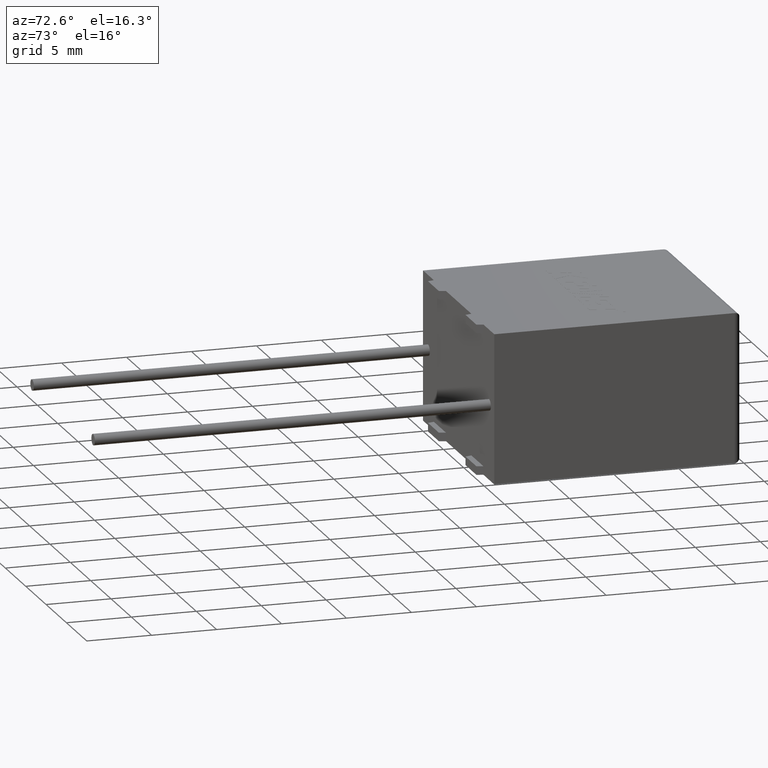
[diagram: clean part render]
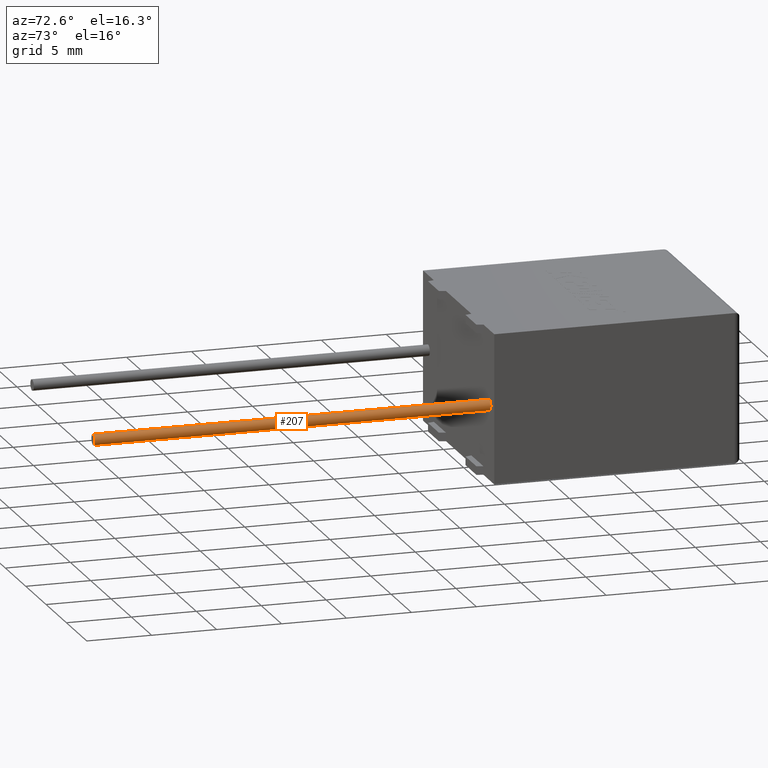
[diagram: same view with one face highlighted and labeled with its STEP entity id]
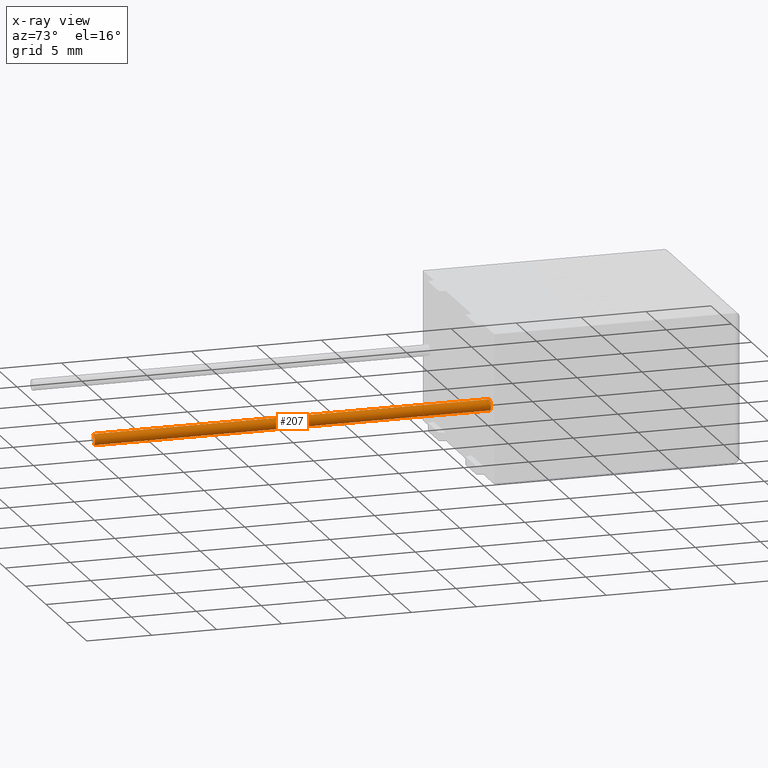
[diagram: x-ray of the same camera — body ghosted, the highlighted face saturated]
A machine part, auxiliary view. The second image highlights one B-rep face of the part: STEP entity #207.
The next image is the same camera in x-ray: the body ghosted, the highlighted face saturated — about 0% of this face is hidden behind the body in this view.
In plain terms, the highlighted cylindrical surface (edge-blend (fillet) strip) has radius 0.425 mm, axis along (-0, 1, -0).
Its self-contained STEP definition (entity closure, byte-faithful):
#110 = CARTESIAN_POINT ( 'NONE',  ( 16.25000000000000000, -30.50000000000000000, 5.325000000000000200 ) ) ;
#207 = ADVANCED_FACE ( 'NONE', ( #702 ), #316, .T. ) ;
#274 = VECTOR ( 'NONE', #2777, 1000.000000000000000 ) ;
#303 = AXIS2_PLACEMENT_3D ( 'NONE', #973, #2250, #3239 ) ;
#316 = CYLINDRICAL_SURFACE ( 'NONE', #303, 0.4250000000000000400 ) ;
#390 = ORIENTED_EDGE ( 'NONE', *, *, #887, .F. ) ;
#454 = CARTESIAN_POINT ( 'NONE',  ( 16.25000000000000000, -30.50000000000000000, 6.174999999999999800 ) ) ;
#511 = AXIS2_PLACEMENT_3D ( 'NONE', #1324, #798, #784 ) ;
#635 = CARTESIAN_POINT ( 'NONE',  ( 16.25000000000000000, -30.50000000000000000, 6.174999999999999800 ) ) ;
#702 = FACE_OUTER_BOUND ( 'NONE', #2484, .T. ) ;
#757 = VECTOR ( 'NONE', #1502, 1000.000000000000000 ) ;
#763 = CARTESIAN_POINT ( 'NONE',  ( 16.25000000000000000, 0.0000000000000000000, 5.325000000000000200 ) ) ;
#784 = DIRECTION ( 'NONE',  ( 0.0000000000000000000, 0.0000000000000000000, -1.000000000000000000 ) ) ;
#798 = DIRECTION ( 'NONE',  ( -0.0000000000000000000, 1.000000000000000000, -0.0000000000000000000 ) ) ;
#852 = CIRCLE ( 'NONE', #2352, 0.4250000000000000400 ) ;
#887 = EDGE_CURVE ( 'NONE', #1435, #2879, #1114, .T. ) ;
#950 = LINE ( 'NONE', #1535, #274 ) ;
#973 = CARTESIAN_POINT ( 'NONE',  ( 16.25000000000000000, -30.50000000000000000, 5.750000000000000000 ) ) ;
#980 = DIRECTION ( 'NONE',  ( -0.0000000000000000000, 1.000000000000000000, -0.0000000000000000000 ) ) ;
#1013 = VERTEX_POINT ( 'NONE', #110 ) ;
#1067 = ORIENTED_EDGE ( 'NONE', *, *, #2301, .T. ) ;
#1114 = CIRCLE ( 'NONE', #511, 0.4250000000000000400 ) ;
#1308 = EDGE_CURVE ( 'NONE', #1013, #2879, #950, .T. ) ;
#1324 = CARTESIAN_POINT ( 'NONE',  ( 16.25000000000000000, 0.0000000000000000000, 5.750000000000000000 ) ) ;
#1389 = VERTEX_POINT ( 'NONE', #635 ) ;
#1427 = ORIENTED_EDGE ( 'NONE', *, *, #1730, .F. ) ;
#1435 = VERTEX_POINT ( 'NONE', #2894 ) ;
#1502 = DIRECTION ( 'NONE',  ( -0.0000000000000000000, 1.000000000000000000, -0.0000000000000000000 ) ) ;
#1535 = CARTESIAN_POINT ( 'NONE',  ( 16.25000000000000000, -30.50000000000000000, 5.325000000000000200 ) ) ;
#1730 = EDGE_CURVE ( 'NONE', #1389, #1435, #3143, .T. ) ;
#2103 = ORIENTED_EDGE ( 'NONE', *, *, #1308, .T. ) ;
#2250 = DIRECTION ( 'NONE',  ( -0.0000000000000000000, 1.000000000000000000, -0.0000000000000000000 ) ) ;
#2301 = EDGE_CURVE ( 'NONE', #1389, #1013, #852, .T. ) ;
#2352 = AXIS2_PLACEMENT_3D ( 'NONE', #2504, #980, #2797 ) ;
#2484 = EDGE_LOOP ( 'NONE', ( #1067, #2103, #390, #1427 ) ) ;
#2504 = CARTESIAN_POINT ( 'NONE',  ( 16.25000000000000000, -30.50000000000000000, 5.750000000000000000 ) ) ;
#2777 = DIRECTION ( 'NONE',  ( -0.0000000000000000000, 1.000000000000000000, -0.0000000000000000000 ) ) ;
#2797 = DIRECTION ( 'NONE',  ( 0.0000000000000000000, 0.0000000000000000000, -1.000000000000000000 ) ) ;
#2879 = VERTEX_POINT ( 'NONE', #763 ) ;
#2894 = CARTESIAN_POINT ( 'NONE',  ( 16.25000000000000000, 0.0000000000000000000, 6.174999999999999800 ) ) ;
#3143 = LINE ( 'NONE', #454, #757 ) ;
#3239 = DIRECTION ( 'NONE',  ( 0.0000000000000000000, 0.0000000000000000000, 1.000000000000000000 ) ) ;